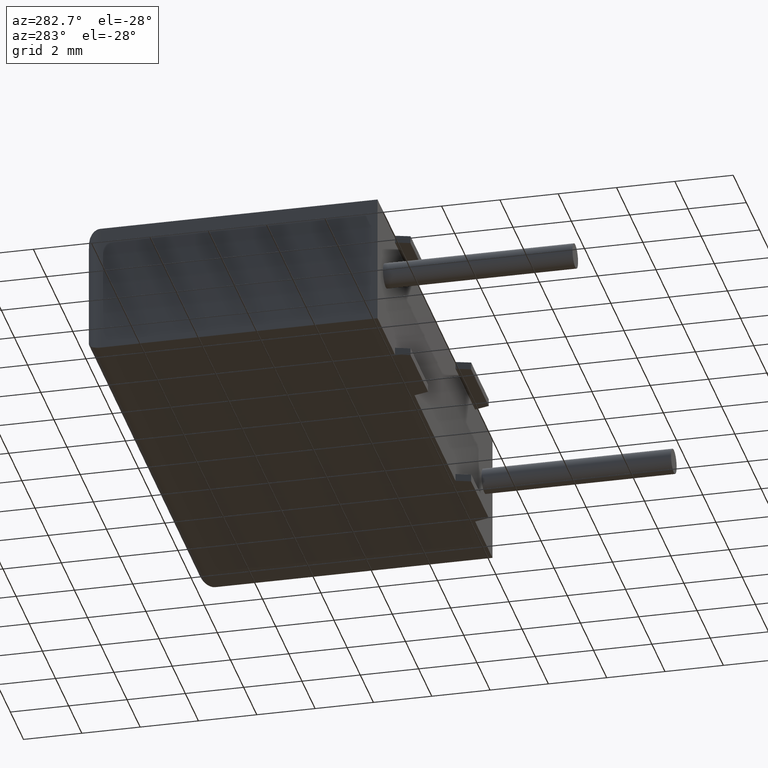
[diagram: clean part render]
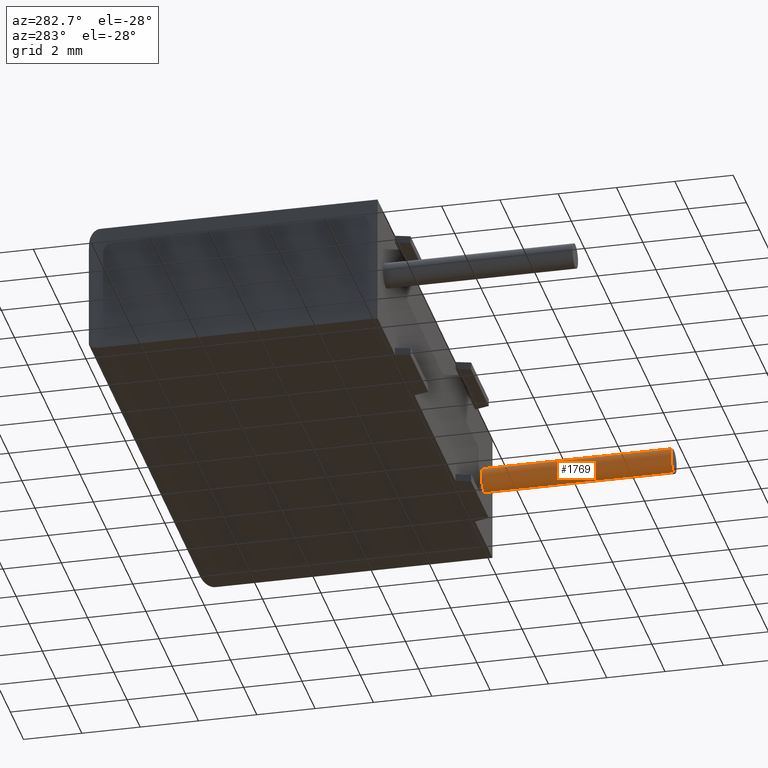
[diagram: same view with one face highlighted and labeled with its STEP entity id]
A machine part, auxiliary view. The second image highlights one B-rep face of the part: STEP entity #1769.
In plain terms, the highlighted cylindrical surface (edge-blend (fillet) strip) has radius 0.425 mm, axis along (-0, 1, -0).
Its self-contained STEP definition (entity closure, byte-faithful):
#31 = CYLINDRICAL_SURFACE ( 'NONE', #223, 0.4250000000000000400 ) ;
#38 = CARTESIAN_POINT ( 'NONE',  ( 16.25000000000000000, -6.500000000000000000, 1.825000000000000600 ) ) ;
#127 = VERTEX_POINT ( 'NONE', #1528 ) ;
#179 = CARTESIAN_POINT ( 'NONE',  ( 16.25000000000000000, -6.500000000000000000, 1.825000000000000600 ) ) ;
#214 = LINE ( 'NONE', #179, #1937 ) ;
#223 = AXIS2_PLACEMENT_3D ( 'NONE', #481, #432, #3208 ) ;
#228 = EDGE_LOOP ( 'NONE', ( #2760, #920, #1153, #2995 ) ) ;
#387 = LINE ( 'NONE', #1800, #3178 ) ;
#432 = DIRECTION ( 'NONE',  ( -0.0000000000000000000, 1.000000000000000000, -0.0000000000000000000 ) ) ;
#481 = CARTESIAN_POINT ( 'NONE',  ( 16.25000000000000000, -6.500000000000000000, 2.250000000000000900 ) ) ;
#572 = DIRECTION ( 'NONE',  ( 0.0000000000000000000, 0.0000000000000000000, -1.000000000000000000 ) ) ;
#920 = ORIENTED_EDGE ( 'NONE', *, *, #2074, .T. ) ;
#999 = EDGE_CURVE ( 'NONE', #2347, #127, #387, .T. ) ;
#1153 = ORIENTED_EDGE ( 'NONE', *, *, #999, .T. ) ;
#1528 = CARTESIAN_POINT ( 'NONE',  ( 16.25000000000000000, 0.0000000000000000000, 2.675000000000000700 ) ) ;
#1539 = DIRECTION ( 'NONE',  ( -0.0000000000000000000, 1.000000000000000000, -0.0000000000000000000 ) ) ;
#1582 = CARTESIAN_POINT ( 'NONE',  ( 16.25000000000000000, 0.0000000000000000000, 2.250000000000000900 ) ) ;
#1631 = DIRECTION ( 'NONE',  ( 0.0000000000000000000, 0.0000000000000000000, -1.000000000000000000 ) ) ;
#1761 = VERTEX_POINT ( 'NONE', #2229 ) ;
#1769 = ADVANCED_FACE ( 'NONE', ( #3176 ), #31, .T. ) ;
#1800 = CARTESIAN_POINT ( 'NONE',  ( 16.25000000000000000, -6.500000000000000000, 2.675000000000000700 ) ) ;
#1937 = VECTOR ( 'NONE', #2191, 1000.000000000000000 ) ;
#1948 = CIRCLE ( 'NONE', #2750, 0.4250000000000000400 ) ;
#2027 = CARTESIAN_POINT ( 'NONE',  ( 16.25000000000000000, -6.500000000000000000, 2.675000000000000700 ) ) ;
#2074 = EDGE_CURVE ( 'NONE', #2845, #2347, #1948, .T. ) ;
#2191 = DIRECTION ( 'NONE',  ( -0.0000000000000000000, 1.000000000000000000, -0.0000000000000000000 ) ) ;
#2229 = CARTESIAN_POINT ( 'NONE',  ( 16.25000000000000000, 0.0000000000000000000, 1.825000000000000600 ) ) ;
#2334 = DIRECTION ( 'NONE',  ( -0.0000000000000000000, 1.000000000000000000, -0.0000000000000000000 ) ) ;
#2347 = VERTEX_POINT ( 'NONE', #2027 ) ;
#2432 = AXIS2_PLACEMENT_3D ( 'NONE', #1582, #1539, #572 ) ;
#2460 = CIRCLE ( 'NONE', #2432, 0.4250000000000000400 ) ;
#2606 = CARTESIAN_POINT ( 'NONE',  ( 16.25000000000000000, -6.500000000000000000, 2.250000000000000900 ) ) ;
#2611 = DIRECTION ( 'NONE',  ( -0.0000000000000000000, 1.000000000000000000, -0.0000000000000000000 ) ) ;
#2750 = AXIS2_PLACEMENT_3D ( 'NONE', #2606, #2334, #1631 ) ;
#2760 = ORIENTED_EDGE ( 'NONE', *, *, #3215, .F. ) ;
#2845 = VERTEX_POINT ( 'NONE', #38 ) ;
#2995 = ORIENTED_EDGE ( 'NONE', *, *, #3014, .F. ) ;
#3014 = EDGE_CURVE ( 'NONE', #1761, #127, #2460, .T. ) ;
#3176 = FACE_OUTER_BOUND ( 'NONE', #228, .T. ) ;
#3178 = VECTOR ( 'NONE', #2611, 1000.000000000000000 ) ;
#3208 = DIRECTION ( 'NONE',  ( 0.0000000000000000000, 0.0000000000000000000, 1.000000000000000000 ) ) ;
#3215 = EDGE_CURVE ( 'NONE', #2845, #1761, #214, .T. ) ;